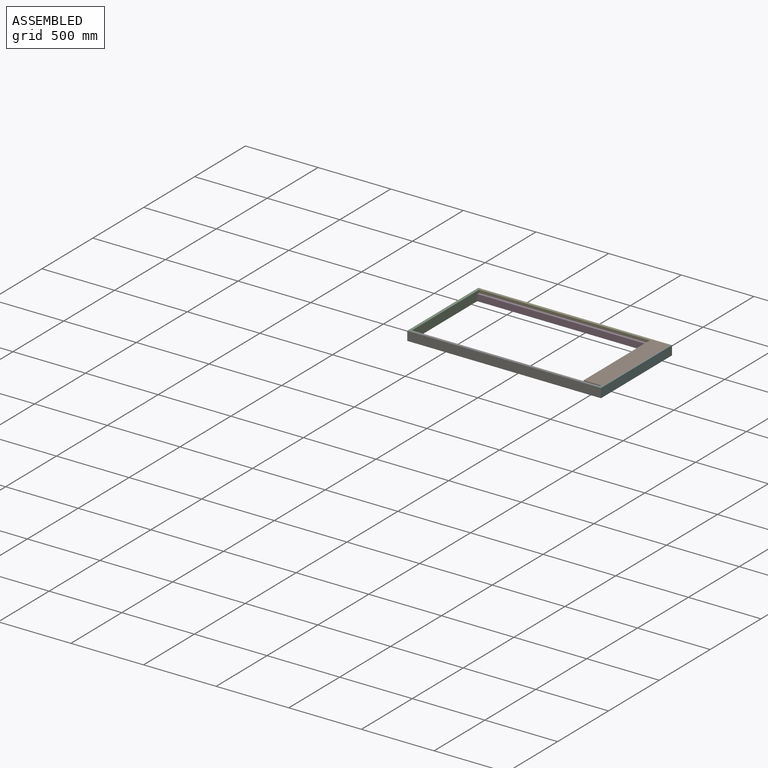
[diagram: assembled view]
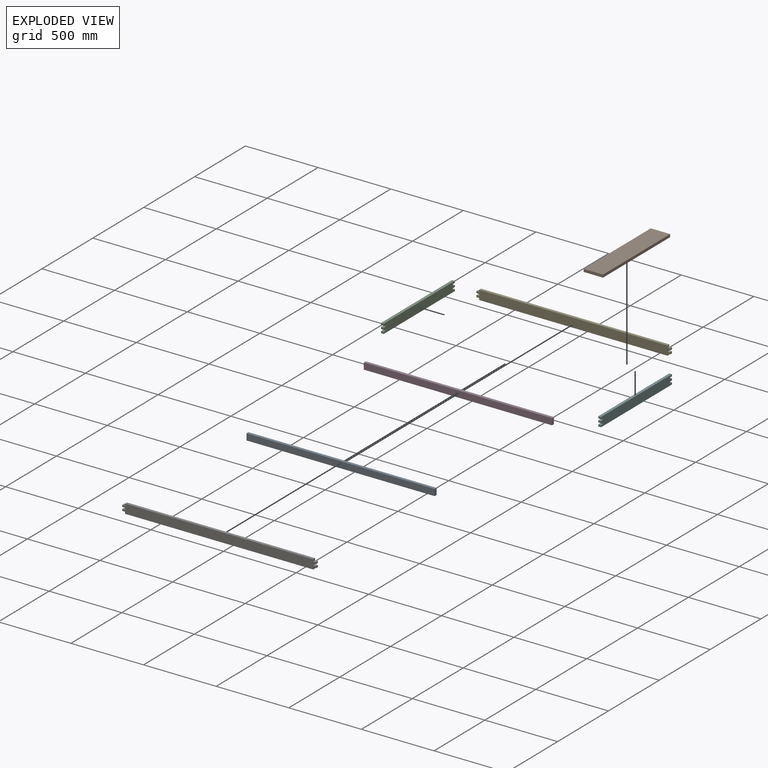
[diagram: exploded view]
GUIDED TOUR — MATED ASSEMBLY (Onshape document 6b5817a81d6ee6e20d9ddf2d, AutoMate assembly 6b5817a81d6ee6e20d9ddf2d_c10a426a1ad42a75fe5e69f8_324c0f573e13cffc6f1d2066_default)

This assembly has 7 components, labeled P0..P6 below (a component is one placed occurrence of a part; the same part can appear more than once), held together by 6 mates. A mate is a constraint between two components; its type names the relative motion it leaves free:
  FASTENED — locks the two components together rigidly (no relative motion).
Axis/direction vectors are unit vectors and 'through' points are millimeter coordinates, both in the assembly's world frame.

MATES
  1. FASTENED "Fastened 5": P0 <-> P6, direction (0.000, -1.000, 0.000) through (-343.35, -445.26, 40.35) mm
  2. FASTENED "Fastened 1": P4 <-> P5, direction (0.000, 0.000, -1.000) through (313.88, 224.66, 30.83) mm
  3. FASTENED "Fastened 4": P3 <-> P4, direction (0.000, 1.000, 0.000) through (-343.35, 215.14, 40.35) mm
  4. FASTENED "Fastened 6": P0 <-> P1, direction (0.000, 0.000, 1.000) through (-343.35, -435.74, 62.58) mm
  5. FASTENED "Fastened 3": P6 <-> P2, direction (0.000, 0.000, -1.000) through (-1000.57, -454.79, 30.83) mm
  6. FASTENED "Fastened 2": P2 <-> P4, direction (0.000, 0.000, -1.000) through (-1000.57, 224.66, 68.93) mm

ASSEMBLY ORDER
  1. P4 — the base component [order verified]
  2. P3 [order verified]
  3. P1 [order verified]
  4. P0 [order verified]
  5. P5 [order verified]
  6. P6 [order verified]
  7. P2 [order verified]
(P2, P5, P6 verified with a relaxed clearance tolerance: the source model stores slight part interference there.)
Order-tag legend:
  [order verified] — this step's position reverses a verified removal order: the component was checked to insert without passing through the ones already placed.

Of the 7 components, 7 carry the full construction recipe — the FeatureScript program that regenerates the part's solid from scratch; the rest are supplied as boundary geometry only.
Each toured component is shown spotlighted twice — in the assembled view, then in the exploded view, where a leader line traces a displaced component back to its assembled socket (saturated green if recipe-attached, orange if geometry-only; every other component desaturated gray) — followed by its recipe or geometry summary and the mates that hold it.
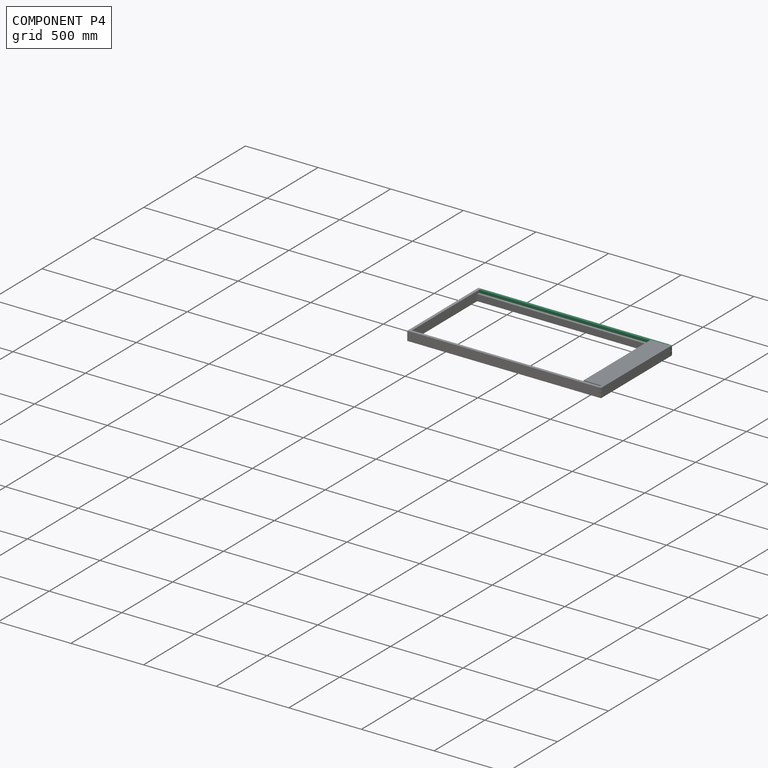
[diagram: component P4 — assembled]
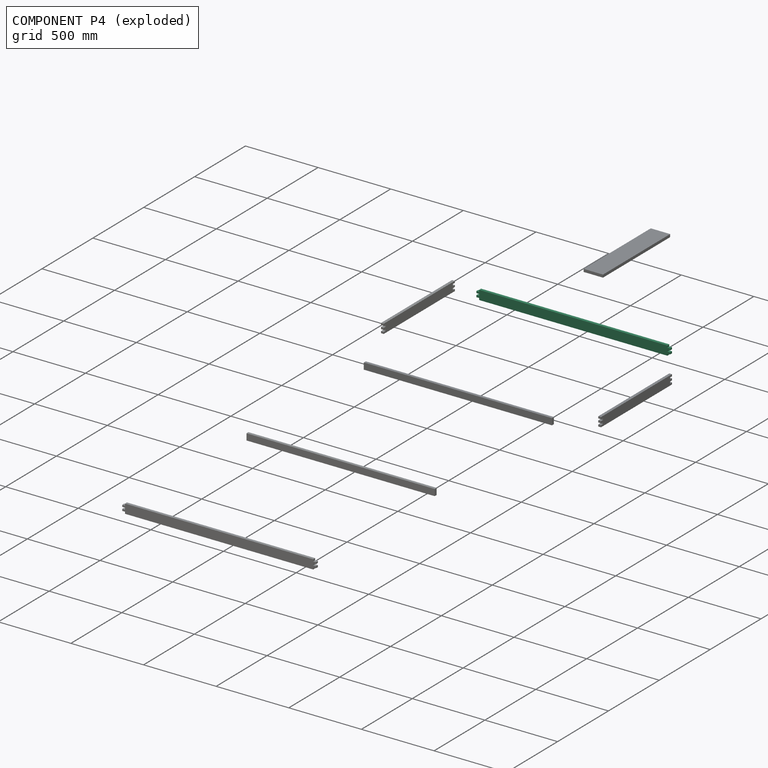
[diagram: component P4 — exploded]
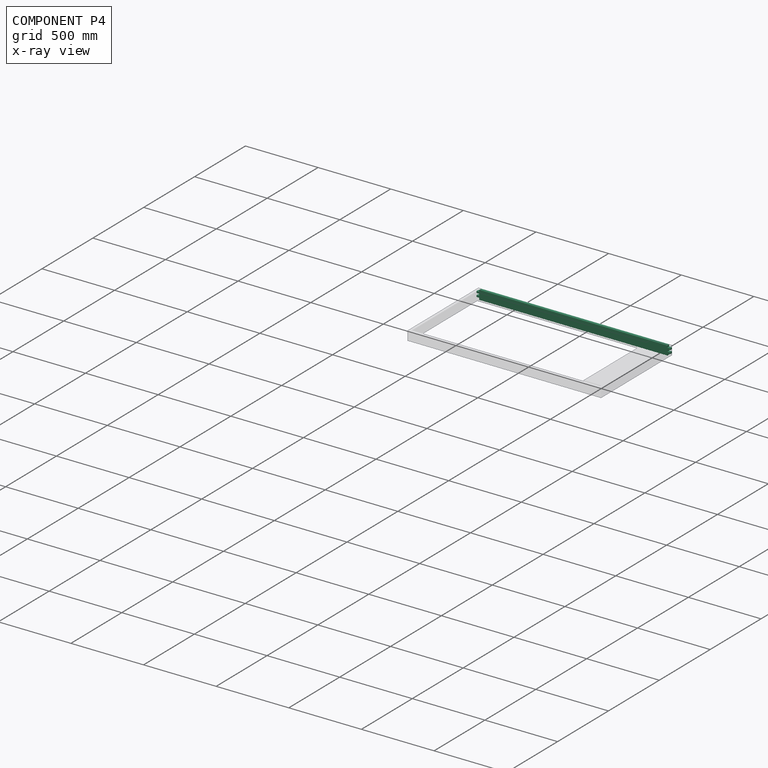
[diagram: component P4 — x-ray view]
COMPONENT P4 — recipe-attached (CADFS 00213969, mesh-verified: the recipe's output STEP matches this component's geometry to below the mesh-comparison resolution (tessellation chordal tolerance ~2 mm)).
Held by: FASTENED mate "Fastened 1" to P5; FASTENED mate "Fastened 4" to P3; FASTENED mate "Fastened 2" to P2.
Construction recipe (FeatureScript — the CAD program that rebuilds this solid; sketch coordinates are in the units given by the * unit suffixes, e.g. mm):

FeatureScript 1511;
import(path : "onshape/std/geometry.fs", version : "1511.0");
import(path : "onshape/std/common.fs", version : "1511.0");
const mm = millimeter;
const VERTEX = EntityType.VERTEX;
const EDGE = EntityType.EDGE;
const FACE = EntityType.FACE;
const BODY = EntityType.BODY;
function v(x, y){return vector(x, y);}
function OD(order){return orderDisambiguation(order);}
function OSD(set){return originalSetDisambiguation(set);}
function TD(topology){return topologyDisambiguation(topology);}
function TDD(query){return trueDependencyDisambiguation(query);}
function sQuery(a, b, c) {return sketchEntityQuery(a, b, c);}

annotation { "Feature Type Name" : "Feature", "Feature Type Description" : "" }
export const myFeature = defineFeature(function(context is Context, id is Id, definition is map)
    precondition{}
    {
        {
            var Q0;
            Q0=qCreatedBy(makeId("Front.planeOp"),FACE);
            var sketch = newSketch(context, id + "F0", { "sketchPlane" : qUnion([Q0])});
            skLineSegment(sketch, "E0", {"start": v(-647.7, 0) * mm, "end": v(647.7, 0) * mm});
            skLineSegment(sketch, "E1", {"start": v(647.7, 0) * mm, "end": v(647.7, 12.7) * mm});
            skLineSegment(sketch, "E2", {"start": v(647.7, 12.7) * mm, "end": v(666.75, 12.7) * mm});
            skLineSegment(sketch, "E3", {"start": v(666.75, 12.7) * mm, "end": v(666.75, 25.4) * mm});
            skLineSegment(sketch, "E4", {"start": v(666.75, 25.4) * mm, "end": v(647.7, 25.4) * mm});
            skLineSegment(sketch, "E5", {"start": v(647.7, 25.4) * mm, "end": v(647.7, 38.1) * mm});
            skLineSegment(sketch, "E6", {"start": v(647.7, 38.1) * mm, "end": v(666.75, 38.1) * mm});
            skLineSegment(sketch, "E7", {"start": v(666.75, 38.1) * mm, "end": v(666.75, 50.8) * mm});
            skLineSegment(sketch, "E8", {"start": v(666.75, 50.8) * mm, "end": v(647.7, 50.8) * mm});
            skLineSegment(sketch, "E9", {"start": v(647.7, 50.8) * mm, "end": v(647.7, 63.5) * mm});
            skLineSegment(sketch, "E10", {"start": v(647.7, 63.5) * mm, "end": v(-647.7, 63.5) * mm});
            skLineSegment(sketch, "E11", {"start": v(-647.7, 63.5) * mm, "end": v(-647.7, 50.8) * mm});
            skLineSegment(sketch, "E12", {"start": v(-647.7, 50.8) * mm, "end": v(-666.75, 50.8) * mm});
            skLineSegment(sketch, "E13", {"start": v(-666.75, 50.8) * mm, "end": v(-666.75, 38.1) * mm});
            skLineSegment(sketch, "E14", {"start": v(-666.75, 38.1) * mm, "end": v(-647.7, 38.1) * mm});
            skLineSegment(sketch, "E15", {"start": v(-647.7, 38.1) * mm, "end": v(-647.7, 25.4) * mm});
            skLineSegment(sketch, "E16", {"start": v(-647.7, 25.4) * mm, "end": v(-666.75, 25.4) * mm});
            skLineSegment(sketch, "E17", {"start": v(-666.75, 25.4) * mm, "end": v(-666.75, 12.7) * mm});
            skLineSegment(sketch, "E18", {"start": v(-666.75, 12.7) * mm, "end": v(-647.7, 12.7) * mm});
            skLineSegment(sketch, "E19", {"start": v(-647.7, 12.7) * mm, "end": v(-647.7, 0) * mm});
            skSolve(sketch);
        }
        {
            var Q0;
            Q0=makeQuery(id+"F0.imprint","IMPRINT",FACE,{"disambiguationData":[TD([[makeQuery(id+"F0.imprint","IMPRINT",EDGE,{"derivedFrom":sQuery(id+"F0.wireOp",EDGE,"E0")}),1.0]])]});
            extrude(context, id + "F1", {"entities" : qUnion([Q0]), "depth" : 19.05 * mm});
        }
    });
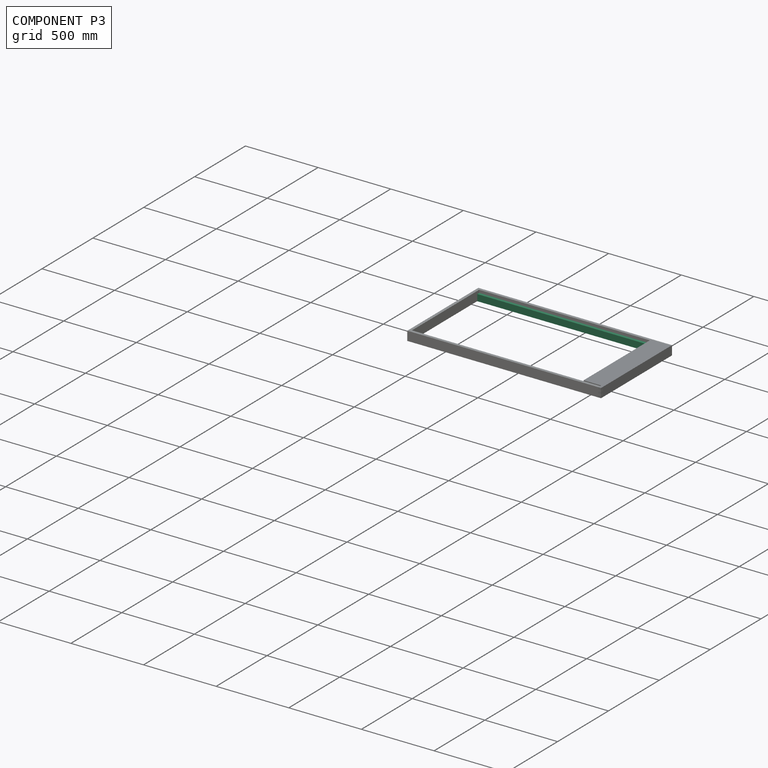
[diagram: component P3 — assembled]
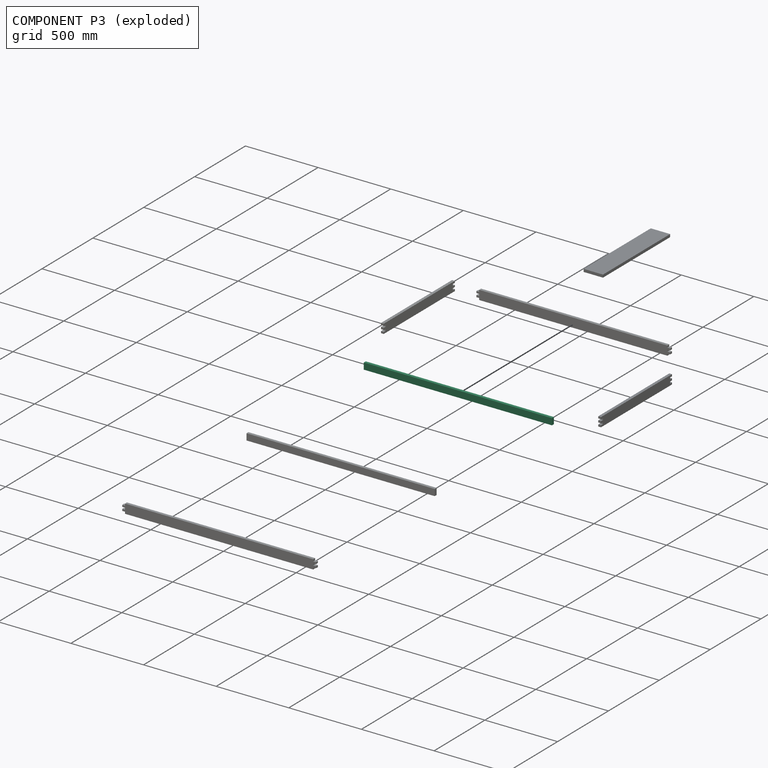
[diagram: component P3 — exploded]
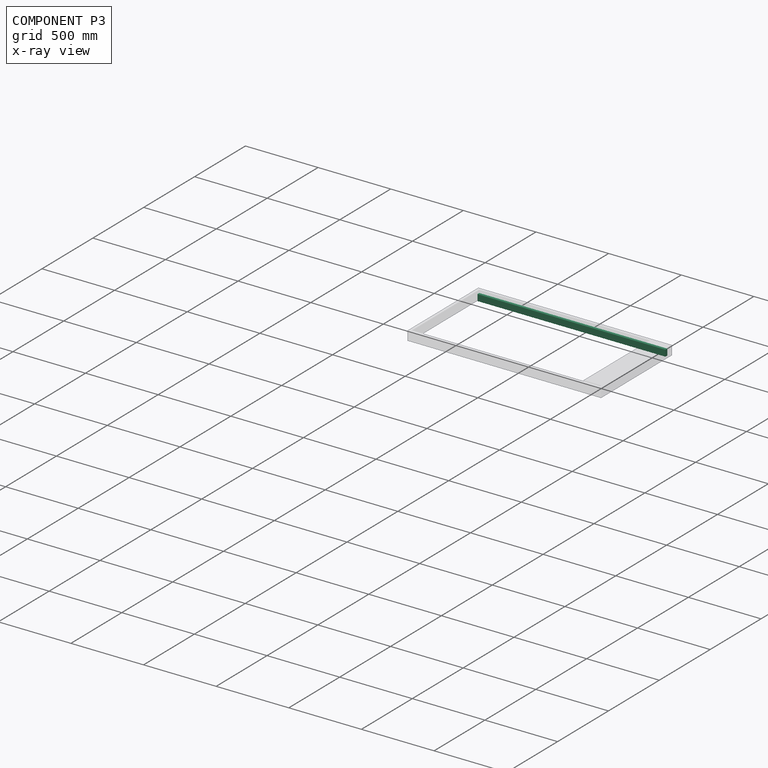
[diagram: component P3 — x-ray view]
COMPONENT P3 — same part as P0 (CADFS 00213970); its construction recipe is shown at P0.
Held by: FASTENED mate "Fastened 4" to P4.
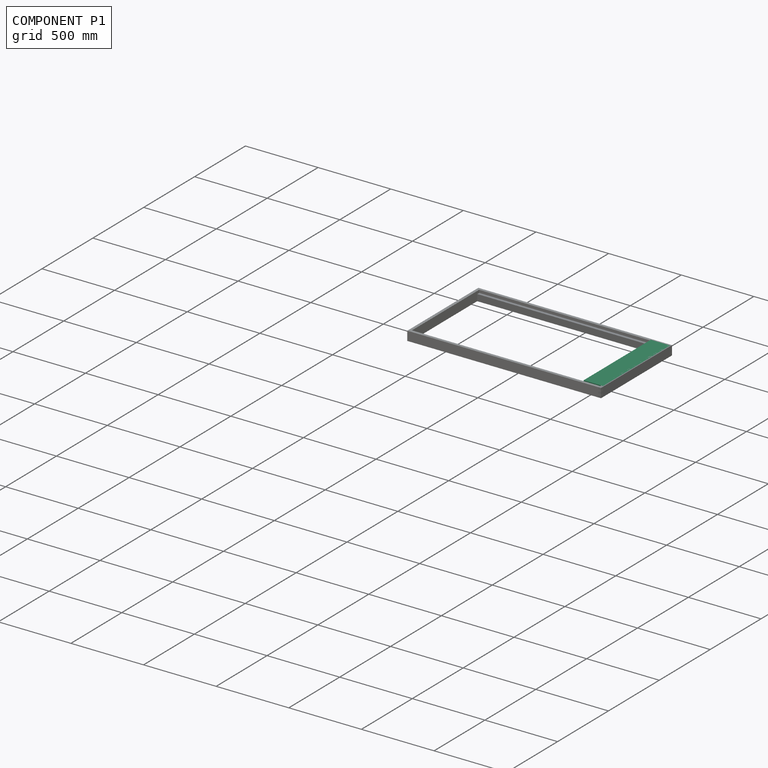
[diagram: component P1 — assembled]
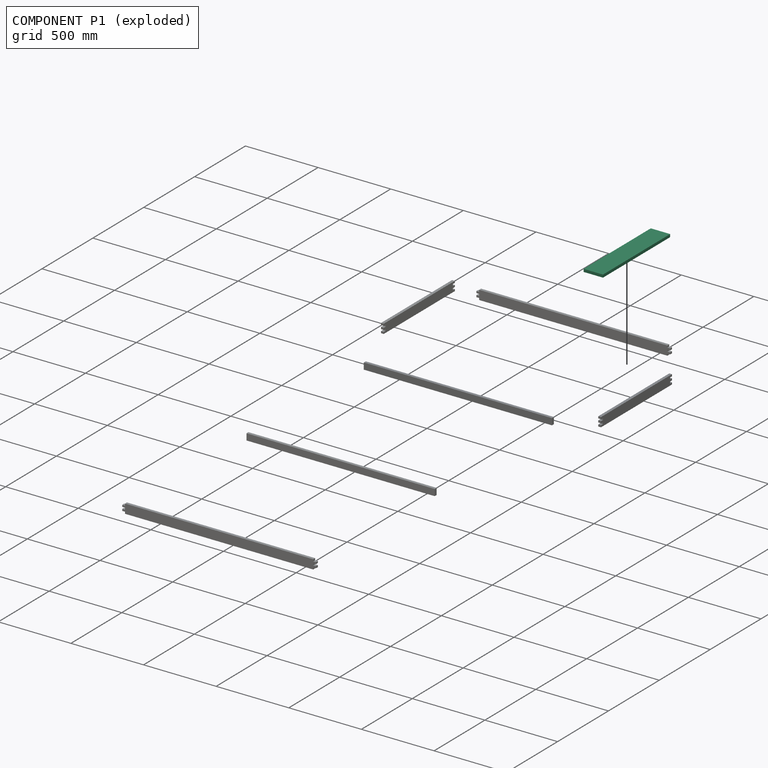
[diagram: component P1 — exploded]
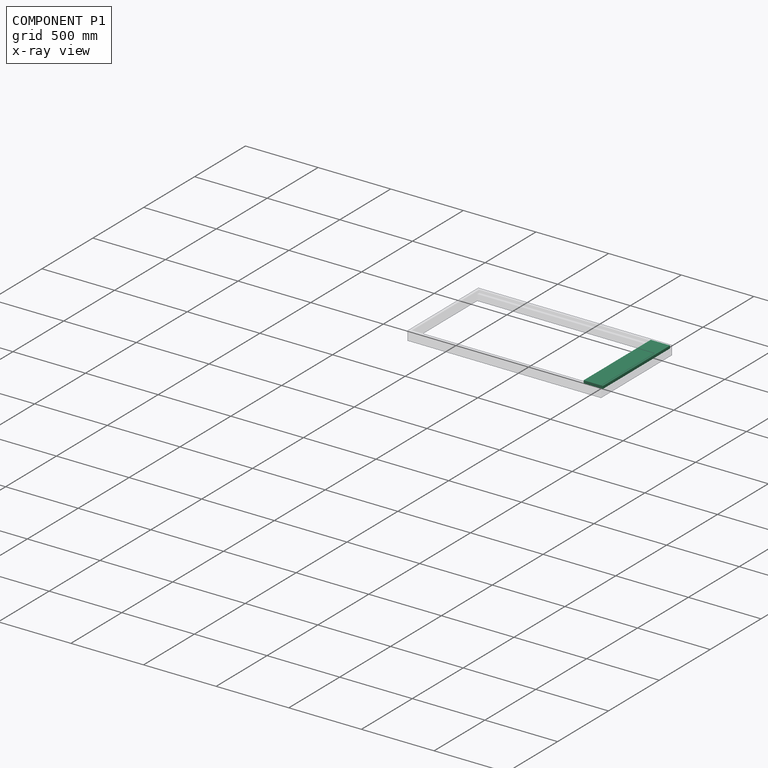
[diagram: component P1 — x-ray view]
COMPONENT P1 — recipe-attached (CADFS 00213971, mesh-verified: the recipe's output STEP matches this component's geometry to below the mesh-comparison resolution (tessellation chordal tolerance ~1.01 mm)).
Held by: FASTENED mate "Fastened 6" to P0.
Construction recipe (FeatureScript — the CAD program that rebuilds this solid; sketch coordinates are in the units given by the * unit suffixes, e.g. mm):

FeatureScript 1511;
import(path : "onshape/std/geometry.fs", version : "1511.0");
import(path : "onshape/std/common.fs", version : "1511.0");
const mm = millimeter;
const VERTEX = EntityType.VERTEX;
const EDGE = EntityType.EDGE;
const FACE = EntityType.FACE;
const BODY = EntityType.BODY;
function v(x, y){return vector(x, y);}
function OD(order){return orderDisambiguation(order);}
function OSD(set){return originalSetDisambiguation(set);}
function TD(topology){return topologyDisambiguation(topology);}
function TDD(query){return trueDependencyDisambiguation(query);}
function sQuery(a, b, c) {return sketchEntityQuery(a, b, c);}

annotation { "Feature Type Name" : "Feature", "Feature Type Description" : "" }
export const myFeature = defineFeature(function(context is Context, id is Id, definition is map)
    precondition{}
    {
        {
            var Q0;
            Q0=qCreatedBy(makeId("Front.planeOp"),FACE);
            var sketch = newSketch(context, id + "F0", { "sketchPlane" : qUnion([Q0])});
            skLineSegment(sketch, "E0.bottom", {"start": v(-330.2, 19.05) * mm, "end": v(330.2, 19.05) * mm});
            skLineSegment(sketch, "E0.top", {"start": v(-330.2, 0) * mm, "end": v(330.2, 0) * mm});
            skLineSegment(sketch, "E0.left", {"start": v(-330.2, 19.05) * mm, "end": v(-330.2, 0) * mm});
            skLineSegment(sketch, "E0.right", {"start": v(330.2, 19.05) * mm, "end": v(330.2, 0) * mm});
            skSolve(sketch);
        }
        {
            var Q0;
            Q0=makeQuery(id+"F0.imprint","IMPRINT",FACE,{"disambiguationData":[TD([[makeQuery(id+"F0.imprint","IMPRINT",EDGE,{"derivedFrom":sQuery(id+"F0.wireOp",EDGE,"E0.bottom")}),-1.0]])]});
            extrude(context, id + "F1", {"entities" : qUnion([Q0]), "depth" : 133.35 * mm});
        }
    });
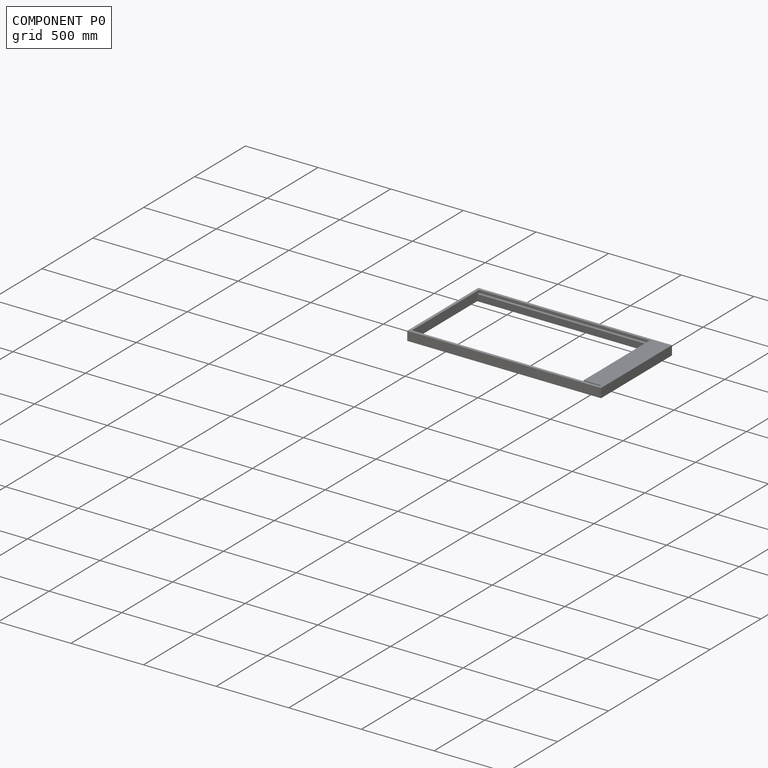
[diagram: component P0 — assembled]
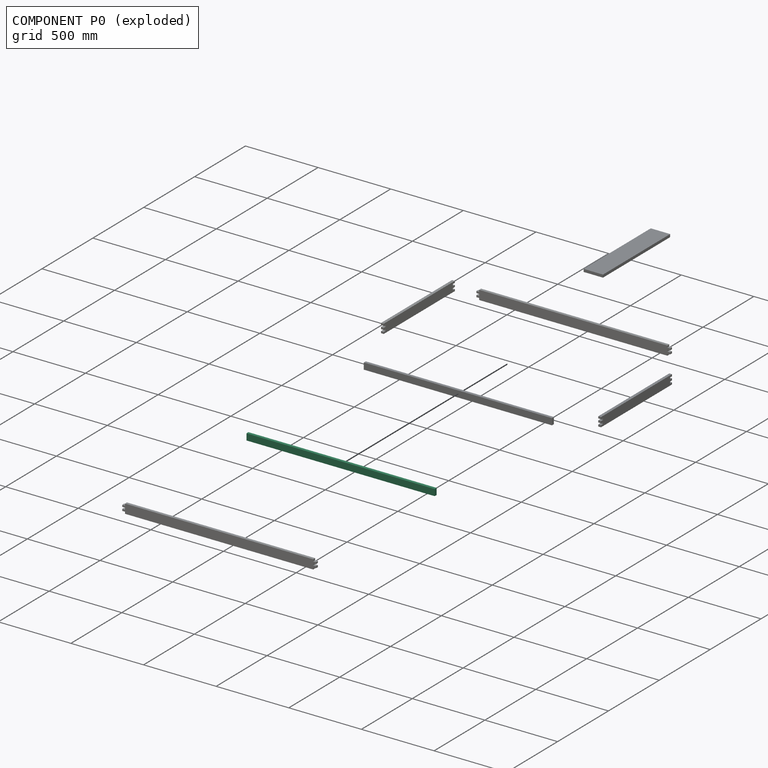
[diagram: component P0 — exploded]
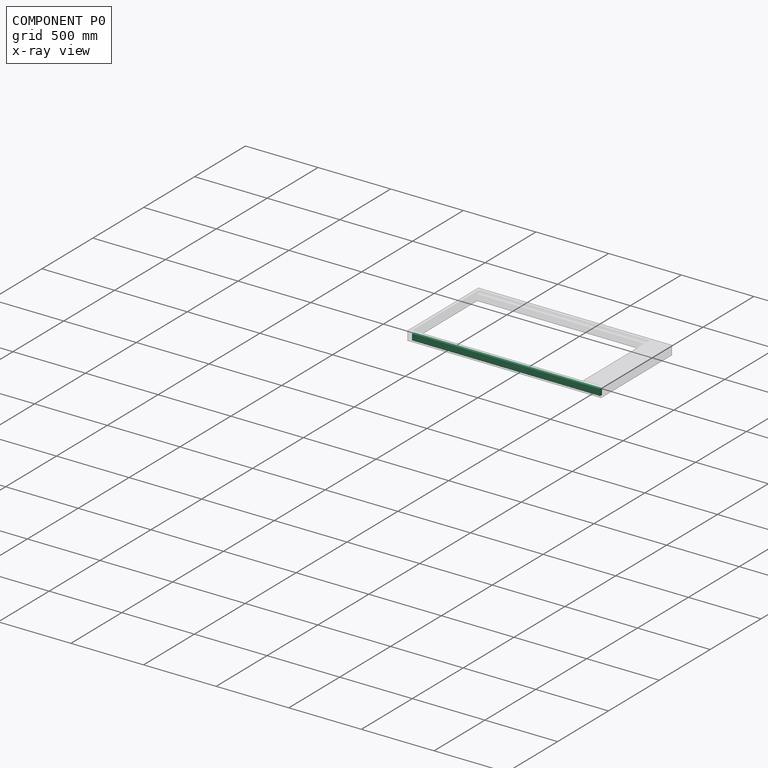
[diagram: component P0 — x-ray view]
COMPONENT P0 — recipe-attached (CADFS 00213970, mesh-verified: the recipe's output STEP matches this component's geometry to below the mesh-comparison resolution (tessellation chordal tolerance ~1.94 mm)).
Held by: FASTENED mate "Fastened 5" to P6; FASTENED mate "Fastened 6" to P1.
Construction recipe (FeatureScript — the CAD program that rebuilds this solid; sketch coordinates are in the units given by the * unit suffixes, e.g. mm):

FeatureScript 1511;
import(path : "onshape/std/geometry.fs", version : "1511.0");
import(path : "onshape/std/common.fs", version : "1511.0");
const mm = millimeter;
const VERTEX = EntityType.VERTEX;
const EDGE = EntityType.EDGE;
const FACE = EntityType.FACE;
const BODY = EntityType.BODY;
function v(x, y){return vector(x, y);}
function OD(order){return orderDisambiguation(order);}
function OSD(set){return originalSetDisambiguation(set);}
function TD(topology){return topologyDisambiguation(topology);}
function TDD(query){return trueDependencyDisambiguation(query);}
function sQuery(a, b, c) {return sketchEntityQuery(a, b, c);}

annotation { "Feature Type Name" : "Feature", "Feature Type Description" : "" }
export const myFeature = defineFeature(function(context is Context, id is Id, definition is map)
    precondition{}
    {
        {
            var Q0;
            Q0=qCreatedBy(makeId("Front.planeOp"),FACE);
            var sketch = newSketch(context, id + "F0", { "sketchPlane" : qUnion([Q0])});
            skLineSegment(sketch, "E0.bottom", {"start": v(-647.7, 0) * mm, "end": v(647.7, 0) * mm});
            skLineSegment(sketch, "E0.top", {"start": v(-647.7, 44.45) * mm, "end": v(647.7, 44.45) * mm});
            skLineSegment(sketch, "E0.left", {"start": v(-647.7, 0) * mm, "end": v(-647.7, 44.45) * mm});
            skLineSegment(sketch, "E0.right", {"start": v(647.7, 0) * mm, "end": v(647.7, 44.45) * mm});
            skSolve(sketch);
        }
        {
            var Q0;
            Q0 = qSketchRegion(id + "F0", true);
            extrude(context, id + "F1", {"entities" : qUnion([Q0]), "depth" : 19.05 * mm});
        }
    });
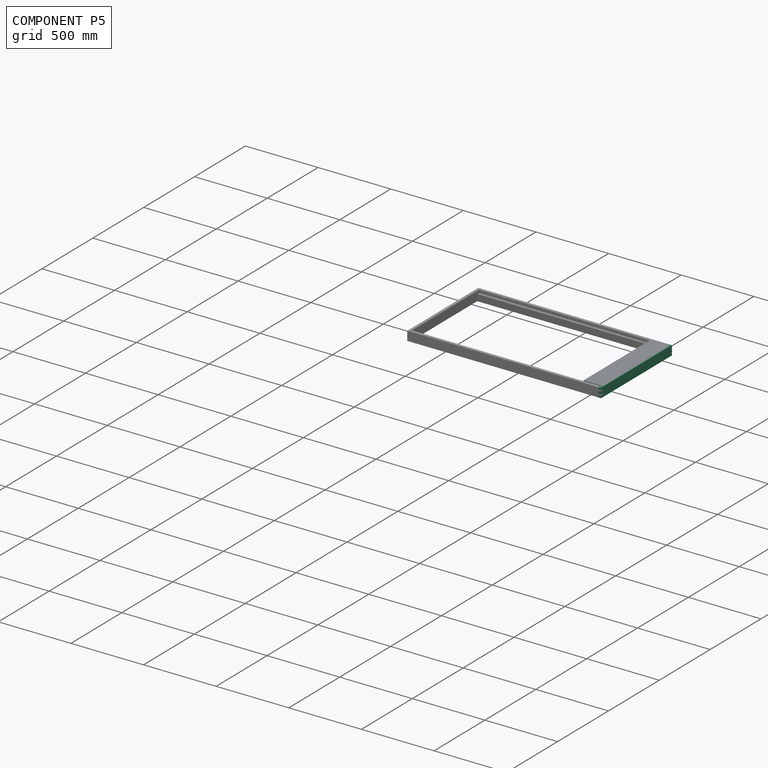
[diagram: component P5 — assembled]
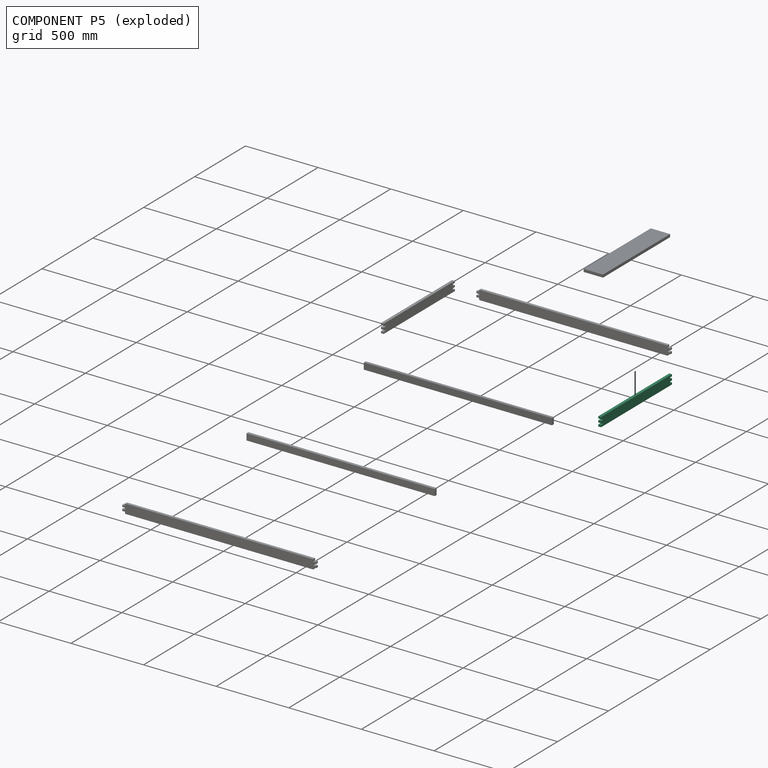
[diagram: component P5 — exploded]
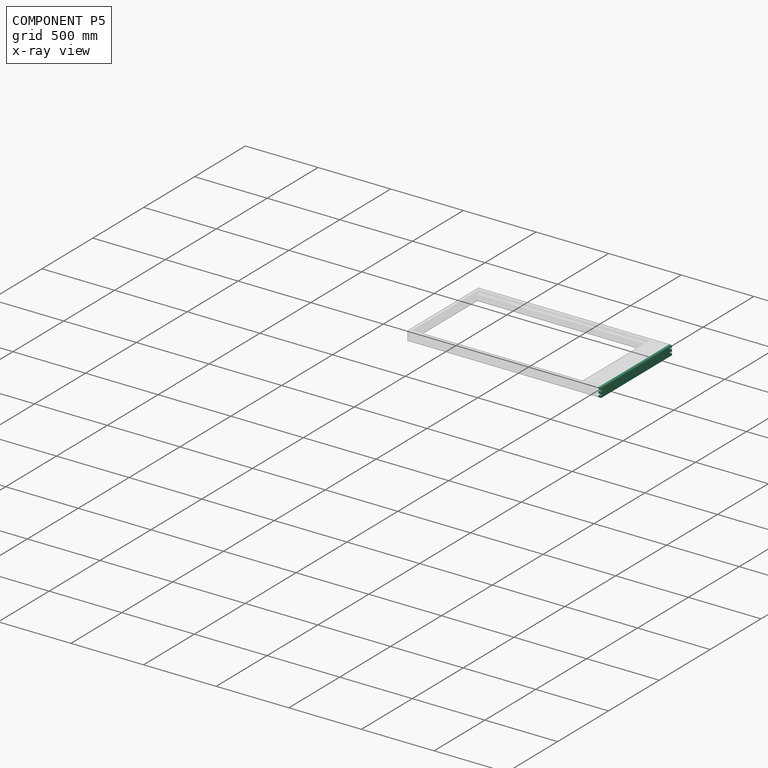
[diagram: component P5 — x-ray view]
COMPONENT P5 — same part as P2 (CADFS 00213968); its construction recipe is shown at P2.
Held by: FASTENED mate "Fastened 1" to P4.
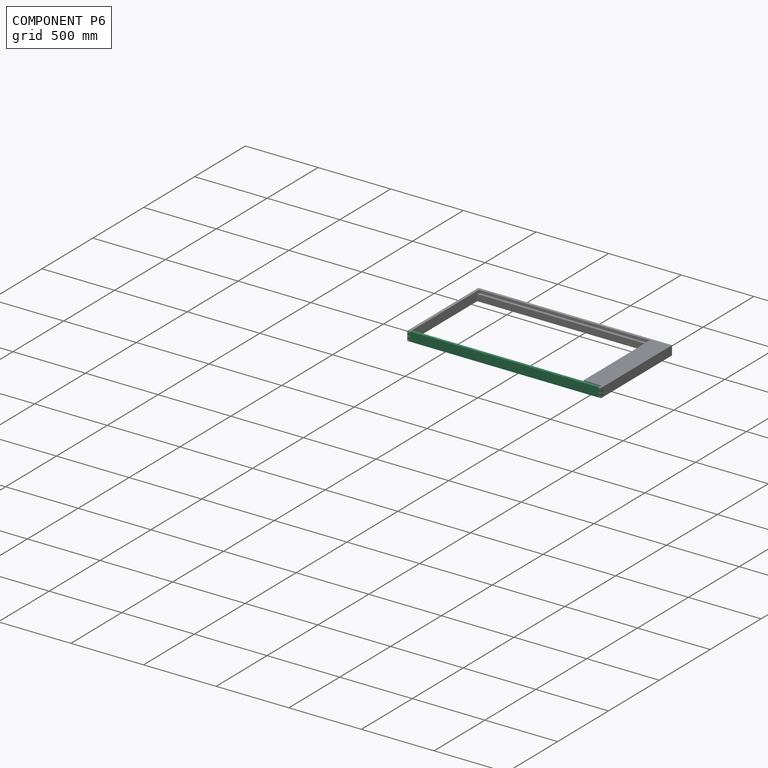
[diagram: component P6 — assembled]
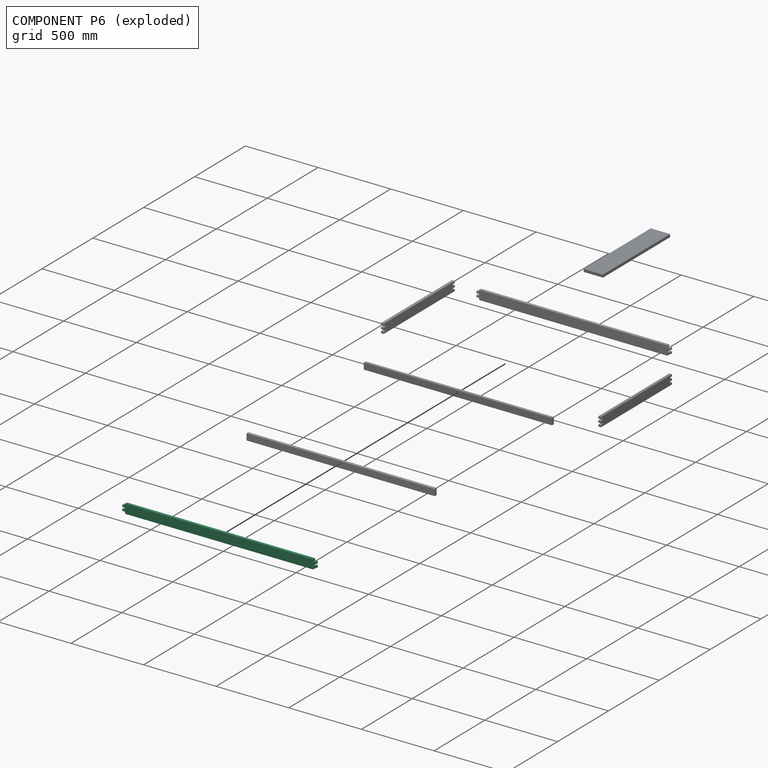
[diagram: component P6 — exploded]
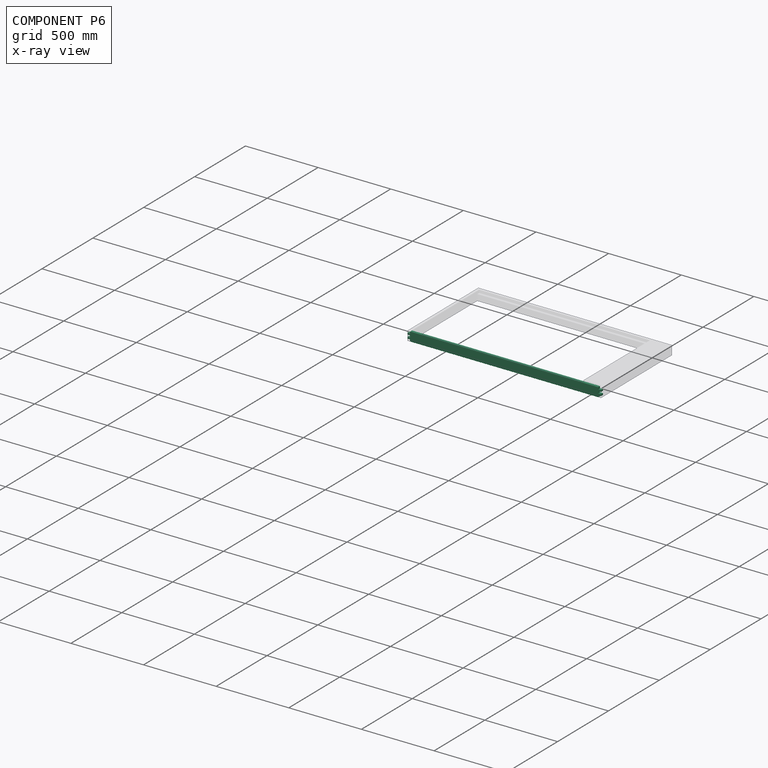
[diagram: component P6 — x-ray view]
COMPONENT P6 — same part as P4 (CADFS 00213969); its construction recipe is shown at P4.
Held by: FASTENED mate "Fastened 5" to P0; FASTENED mate "Fastened 3" to P2.
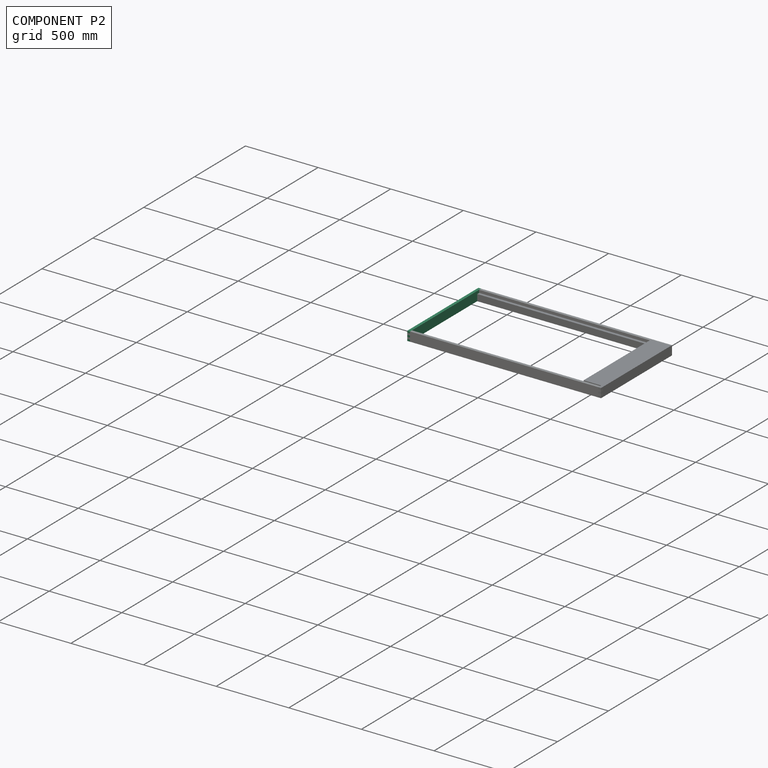
[diagram: component P2 — assembled]
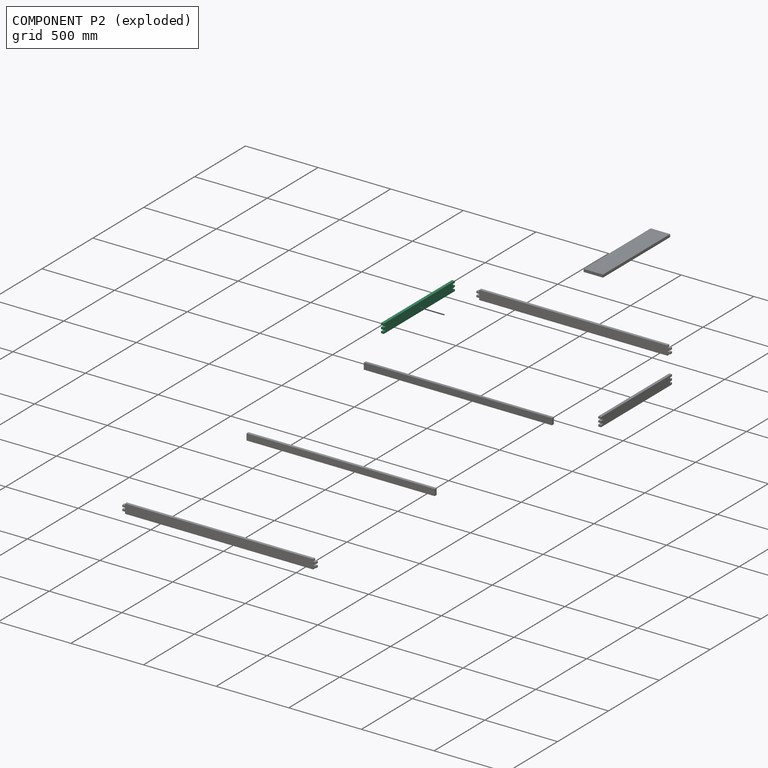
[diagram: component P2 — exploded]
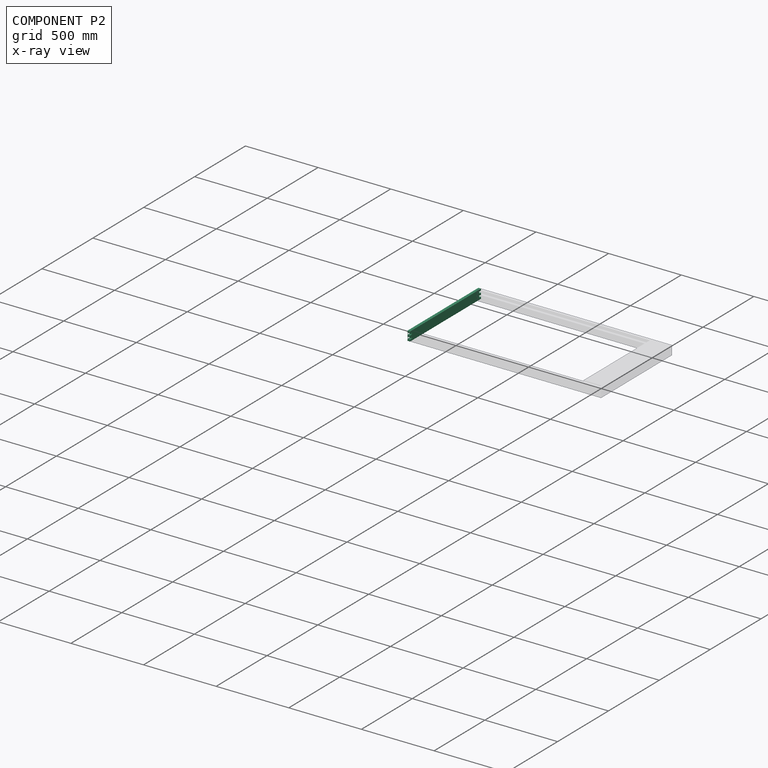
[diagram: component P2 — x-ray view]
COMPONENT P2 — recipe-attached (CADFS 00213968, mesh-verified: the recipe's output STEP matches this component's geometry to below the mesh-comparison resolution (tessellation chordal tolerance ~1.05 mm)).
Held by: FASTENED mate "Fastened 3" to P6; FASTENED mate "Fastened 2" to P4.
Construction recipe (FeatureScript — the CAD program that rebuilds this solid; sketch coordinates are in the units given by the * unit suffixes, e.g. mm):

FeatureScript 1511;
import(path : "onshape/std/geometry.fs", version : "1511.0");
import(path : "onshape/std/common.fs", version : "1511.0");
const mm = millimeter;
const VERTEX = EntityType.VERTEX;
const EDGE = EntityType.EDGE;
const FACE = EntityType.FACE;
const BODY = EntityType.BODY;
function v(x, y){return vector(x, y);}
function OD(order){return orderDisambiguation(order);}
function OSD(set){return originalSetDisambiguation(set);}
function TD(topology){return topologyDisambiguation(topology);}
function TDD(query){return trueDependencyDisambiguation(query);}
function sQuery(a, b, c) {return sketchEntityQuery(a, b, c);}

annotation { "Feature Type Name" : "Feature", "Feature Type Description" : "" }
export const myFeature = defineFeature(function(context is Context, id is Id, definition is map)
    precondition{}
    {
        {
            var Q0;
            Q0=qCreatedBy(makeId("Front.planeOp"),FACE);
            var sketch = newSketch(context, id + "F0", { "sketchPlane" : qUnion([Q0])});
            skLineSegment(sketch, "E0", {"start": v(0, 0) * mm, "end": v(698.5, 0) * mm});
            skLineSegment(sketch, "E1", {"start": v(698.5, 0) * mm, "end": v(698.5, 12.7) * mm});
            skLineSegment(sketch, "E2", {"start": v(698.5, 12.7) * mm, "end": v(679.45, 12.7) * mm});
            skLineSegment(sketch, "E3", {"start": v(679.45, 12.7) * mm, "end": v(679.45, 25.4) * mm});
            skLineSegment(sketch, "E4", {"start": v(679.45, 25.4) * mm, "end": v(698.5, 25.4) * mm});
            skLineSegment(sketch, "E5", {"start": v(698.5, 25.4) * mm, "end": v(698.5, 38.1) * mm});
            skLineSegment(sketch, "E6", {"start": v(698.5, 38.1) * mm, "end": v(679.45, 38.1) * mm});
            skLineSegment(sketch, "E7", {"start": v(679.45, 38.1) * mm, "end": v(679.45, 50.8) * mm});
            skLineSegment(sketch, "E8", {"start": v(679.45, 50.8) * mm, "end": v(698.5, 50.8) * mm});
            skLineSegment(sketch, "E9", {"start": v(698.5, 50.8) * mm, "end": v(698.5, 63.5) * mm});
            skLineSegment(sketch, "E10", {"start": v(698.5, 63.5) * mm, "end": v(0, 63.5) * mm});
            skLineSegment(sketch, "E11", {"start": v(0, 63.5) * mm, "end": v(0, 50.8) * mm});
            skLineSegment(sketch, "E12", {"start": v(0, 50.8) * mm, "end": v(19.05, 50.8) * mm});
            skLineSegment(sketch, "E13", {"start": v(19.05, 50.8) * mm, "end": v(19.05, 38.1) * mm});
            skLineSegment(sketch, "E14", {"start": v(19.05, 38.1) * mm, "end": v(0, 38.1) * mm});
            skLineSegment(sketch, "E15", {"start": v(0, 38.1) * mm, "end": v(0, 25.4) * mm});
            skLineSegment(sketch, "E16", {"start": v(0, 25.4) * mm, "end": v(19.05, 25.4) * mm});
            skLineSegment(sketch, "E17", {"start": v(19.05, 25.4) * mm, "end": v(19.05, 12.7) * mm});
            skLineSegment(sketch, "E18", {"start": v(19.05, 12.7) * mm, "end": v(0, 12.7) * mm});
            skLineSegment(sketch, "E19", {"start": v(0, 12.7) * mm, "end": v(0, 0) * mm});
            skSolve(sketch);
        }
        {
            var Q0;
            Q0 = qSketchRegion(id + "F0", true);
            extrude(context, id + "F1", {"entities" : qUnion([Q0]), "depth" : 19.05 * mm});
        }
    });
PROVENANCE & LICENSES
Assembly (occurrences, transforms, mates, per-part STEP geometry): AutoMate dataset, Zenodo record 7776208, CC0.
Construction recipes: CADFS (HuggingFace VladPyatov/CADFS, CC-BY-4.0, layered over the ABC dataset), FeatureScript reconstruction programs keyed by ABC model id.
Join: ABC meta listings map ABC model id -> Onshape documentId; within a shared document, parts are matched by geometric signature (bounding-box dims + volume at 0.1% relative tolerance, exact B-rep face/solid counts).
Verification: 7 of this assembly's 7 components carry a recipe attachment, and every attachment is mesh-verified: the CADFS STEP and the AutoMate member STEP were compared as meshes in their shared local frame (symmetric sampled-point-to-mesh distance); worst across the 7 attachments: below the mesh-comparison resolution (tessellation chordal tolerance ~2 mm) on a 1335 mm part.
Renders: orthographic iso camera (az 35 / el 25); the floor grid conveys scale (grid pitch printed in each image; no ruler). In the exploded view each component is displaced by its stored offset vector: the offsets alone carry the explosion direction (mate normal/axis signs are not orientation cues and do not encode it), and separation distances are assigned per mate-chain, not proportionally to assembly-order depth.
